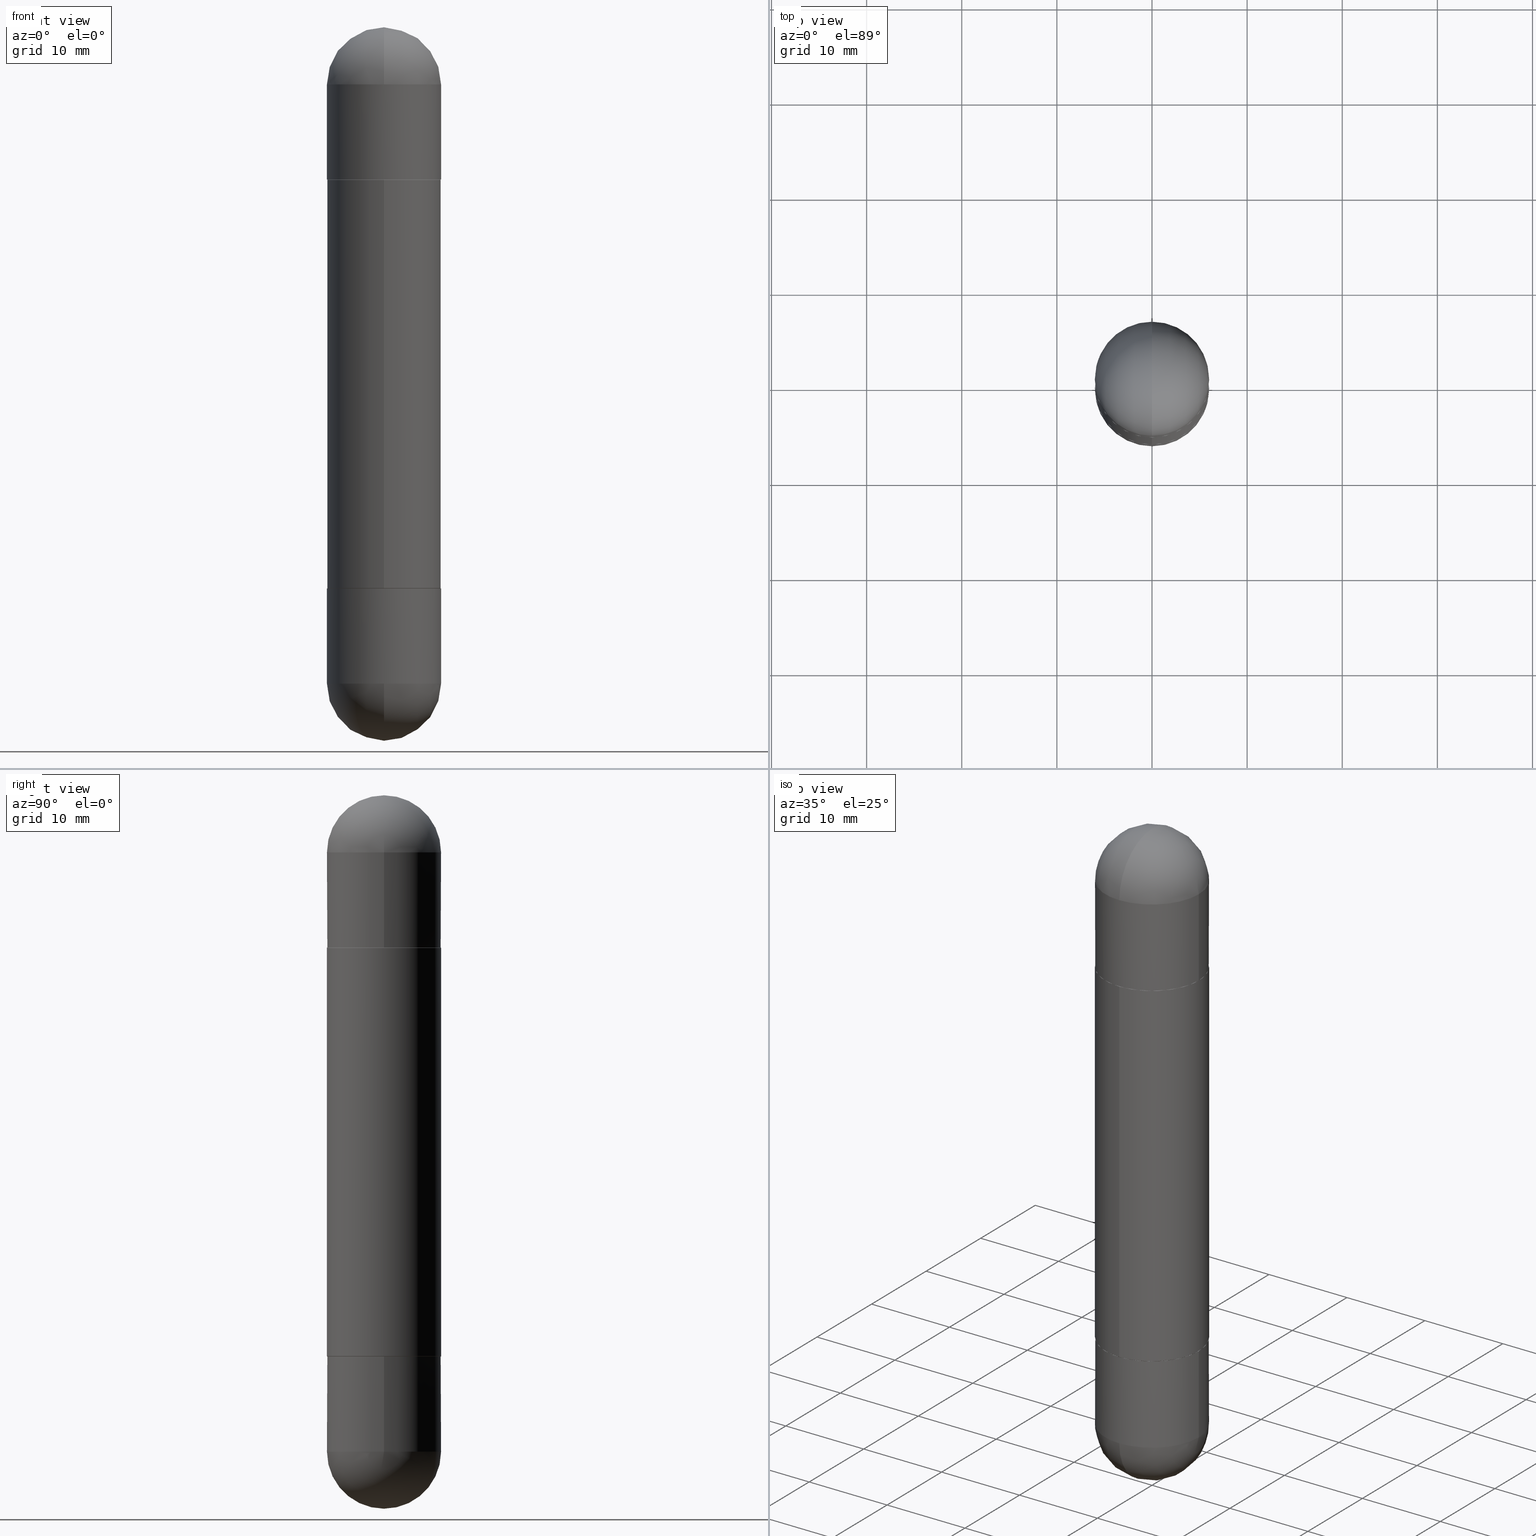
[diagram: canonical four-view strip — front | top / right | iso, engineering-drawing reading convention]
A machine part, canonical four-view strip (front | top / right | iso — engineering-drawing reading convention). The complete STEP part file that produces these views, byte-faithful:
ISO-10303-21;
HEADER;
FILE_DESCRIPTION (( 'STEP AP203' ),
    '1' );
FILE_NAME ('49004.STEP',
    '2024-03-01T12:50:22',
    ( '' ),
    ( '' ),
    'SwSTEP 2.0',
    'SolidWorks 2023',
    '' );
FILE_SCHEMA (( 'CONFIG_CONTROL_DESIGN' ));
ENDSEC;

DATA;
#1 = LINE ( 'NONE', #500, #76 ) ;
#2 = LINE ( 'NONE', #123, #680 ) ;
#3 = EDGE_LOOP ( 'NONE', ( #600, #292, #599, #556 ) ) ;
#4 = DIRECTION ( 'NONE',  ( -6.982962677686265133E-15, -1.000000000000000000, -3.484499991918703113E-15 ) ) ;
#5 = DIRECTION ( 'NONE',  ( -6.982962677686265922E-15, -1.000000000000000000, -3.469747663417773058E-15 ) ) ;
#6 = DIRECTION ( 'NONE',  ( 1.000000000000000000, -6.982962677686265133E-15, 0.000000000000000000 ) ) ;
#7 = AXIS2_PLACEMENT_3D ( 'NONE', #759, #198, #189 ) ;
#8 = AXIS2_PLACEMENT_3D ( 'NONE', #179, #727, #604 ) ;
#9 = CARTESIAN_POINT ( 'NONE',  ( 1.620449627073636656E-15, 0.2362000000000001598, -2.952799999999998537 ) ) ;
#10 = CIRCLE ( 'NONE', #233, 0.2362000000000002709 ) ;
#11 = CC_DESIGN_PERSON_AND_ORGANIZATION_ASSIGNMENT ( #637, #73, ( #102 ) ) ;
#12 =( LENGTH_UNIT ( ) NAMED_UNIT ( * ) SI_UNIT ( $, .METRE. ) );
#13 = DIRECTION ( 'NONE',  ( -2.445468806185136877E-29, 3.491481338843145188E-15, 1.000000000000000000 ) ) ;
#14 = EDGE_CURVE ( 'NONE', #50, #178, #375, .T. ) ;
#15 = DIRECTION ( 'NONE',  ( -2.445468806185136597E-29, 3.491481338843145583E-15, 1.000000000000000000 ) ) ;
#16 = VERTEX_POINT ( 'NONE', #47 ) ;
#17 = VERTEX_POINT ( 'NONE', #536 ) ;
#18 = DIRECTION ( 'NONE',  ( 1.000000000000000000, -6.982962677686265133E-15, 0.000000000000000000 ) ) ;
#19 = SPHERICAL_SURFACE ( 'NONE', #504, 0.2362000000000002709 ) ;
#20 = CIRCLE ( 'NONE', #138, 0.2362000000000002709 ) ;
#21 = EDGE_CURVE ( 'NONE', #17, #225, #312, .T. ) ;
#22 = EDGE_LOOP ( 'NONE', ( #26, #672, #405, #93 ) ) ;
#23 = AXIS2_PLACEMENT_3D ( 'NONE', #433, #686, #324 ) ;
#24 = DIRECTION ( 'NONE',  ( 1.000000000000000000, -6.982962677686265133E-15, 0.000000000000000000 ) ) ;
#25 = SPHERICAL_SURFACE ( 'NONE', #464, 0.2362000000000002709 ) ;
#26 = ORIENTED_EDGE ( 'NONE', *, *, #470, .F. ) ;
#27 = PLANE ( 'NONE',  #505 ) ;
#28 = DIRECTION ( 'NONE',  ( 6.982962677686265922E-15, 1.000000000000000000, 3.469747663417773058E-15 ) ) ;
#29 = VERTEX_POINT ( 'NONE', #605 ) ;
#30 = ORIENTED_EDGE ( 'NONE', *, *, #529, .T. ) ;
#31 = ADVANCED_FACE ( 'NONE', ( #422 ), #237, .T. ) ;
#32 = CALENDAR_DATE ( 2024, 1, 3 ) ;
#33 = CARTESIAN_POINT ( 'NONE',  ( 5.680579489887452821E-29, -8.110362001998742346E-15, -2.322899999999999743 ) ) ;
#34 = VERTEX_POINT ( 'NONE', #613 ) ;
#35 = ORIENTED_EDGE ( 'NONE', *, *, #216, .T. ) ;
#36 = AXIS2_PLACEMENT_3D ( 'NONE', #175, #99, #353 ) ;
#37 = DATE_AND_TIME ( #725, #388 ) ;
#38 = UNCERTAINTY_MEASURE_WITH_UNIT (LENGTH_MEASURE( 1.000000000000000082E-05 ), #147, 'distance_accuracy_value', 'NONE');
#39 = ORIENTED_EDGE ( 'NONE', *, *, #513, .T. ) ;
#40 = DIRECTION ( 'NONE',  ( -2.446269011737253115E-29, 3.490335398947642466E-15, -1.000000000000000000 ) ) ;
#41 = DIRECTION ( 'NONE',  ( -6.982962677686265133E-15, -1.000000000000000000, 3.484499991918703113E-15 ) ) ;
#42 = ORIENTED_EDGE ( 'NONE', *, *, #783, .F. ) ;
#43 = FACE_OUTER_BOUND ( 'NONE', #283, .T. ) ;
#44 = DIRECTION ( 'NONE',  ( 2.445468806185136597E-29, -3.491481338843145583E-15, 1.000000000000000000 ) ) ;
#45 = EDGE_LOOP ( 'NONE', ( #331, #398 ) ) ;
#46 = LINE ( 'NONE', #737, #695 ) ;
#47 = CARTESIAN_POINT ( 'NONE',  ( -0.2361999999999999933, -7.177210476476377283E-15, -0.6299000000000000155 ) ) ;
#48 = EDGE_CURVE ( 'NONE', #658, #712, #627, .T. ) ;
#49 = ORIENTED_EDGE ( 'NONE', *, *, #180, .T. ) ;
#50 = VERTEX_POINT ( 'NONE', #474 ) ;
#51 = ORIENTED_EDGE ( 'NONE', *, *, #756, .T. ) ;
#52 = AXIS2_PLACEMENT_3D ( 'NONE', #540, #352, #430 ) ;
#53 = AXIS2_PLACEMENT_3D ( 'NONE', #85, #15, #403 ) ;
#54 = CARTESIAN_POINT ( 'NONE',  ( -1.649375784469441108E-15, -0.2362000000000083755, -2.321899999999998965 ) ) ;
#55 = DIRECTION ( 'NONE',  ( 2.445468806185136597E-29, -3.491481338843145583E-15, 1.000000000000000000 ) ) ;
#56 = EDGE_CURVE ( 'NONE', #177, #707, #62, .T. ) ;
#57 = CARTESIAN_POINT ( 'NONE',  ( 6.643360558882540179E-29, -9.484958205101285532E-15, -2.716599999999999238 ) ) ;
#58 = CARTESIAN_POINT ( 'NONE',  ( 0.2361999999999999933, -1.649375784469496131E-15, 1.151752954443000088E-29 ) ) ;
#59 = ADVANCED_FACE ( 'NONE', ( #609 ), #515, .T. ) ;
#60 = DIRECTION ( 'NONE',  ( 2.438088387897960049E-29, -3.491481338843145188E-15, 1.000000000000000000 ) ) ;
#61 = DIRECTION ( 'NONE',  ( -6.982962677686265133E-15, -1.000000000000000000, 3.484499991918703113E-15 ) ) ;
#62 = CIRCLE ( 'NONE', #601, 0.2362000000000002709 ) ;
#63 = CARTESIAN_POINT ( 'NONE',  ( 5.680579489887452821E-29, -8.110362001998742346E-15, -0.6299000000000000155 ) ) ;
#64 = CIRCLE ( 'NONE', #197, 0.2361999999999999933 ) ;
#65 = CIRCLE ( 'NONE', #787, 0.2361999999999999933 ) ;
#66 = DIRECTION ( 'NONE',  ( -2.446269011737253396E-29, 3.490335398947642861E-15, -1.000000000000000000 ) ) ;
#67 = VERTEX_POINT ( 'NONE', #484 ) ;
#68 = DIRECTION ( 'NONE',  ( 6.982962677686265922E-15, 1.000000000000000000, 3.469747663417773058E-15 ) ) ;
#69 = DIRECTION ( 'NONE',  ( -6.982962677686265133E-15, -1.000000000000000000, -3.484499991918703113E-15 ) ) ;
#70 = CARTESIAN_POINT ( 'NONE',  ( 0.2361999999999999933, -1.649375784469496131E-15, -2.952799999999999869 ) ) ;
#71 = CARTESIAN_POINT ( 'NONE',  ( 5.682438287364464095E-29, -8.107700098215478665E-15, -0.6299000000000000155 ) ) ;
#72 = CC_DESIGN_DATE_AND_TIME_ASSIGNMENT ( #551, #228, ( #94 ) ) ;
#73 = PERSON_AND_ORGANIZATION_ROLE ( 'design_owner' ) ;
#74 = CIRCLE ( 'NONE', #36, 0.2361999999999999933 ) ;
#75 = DIRECTION ( 'NONE',  ( -2.445468806185136877E-29, 3.491481338843145188E-15, -1.000000000000000000 ) ) ;
#76 = VECTOR ( 'NONE', #488, 39.37007874015748143 ) ;
#77 = COORDINATED_UNIVERSAL_TIME_OFFSET ( 5, 0, .BEHIND. ) ;
#78 = CARTESIAN_POINT ( 'NONE',  ( -1.642392821791752924E-15, -0.2352000000000080970, -0.6299000000000007926 ) ) ;
#79 = VERTEX_POINT ( 'NONE', #242 ) ;
#80 = CARTESIAN_POINT ( 'NONE',  ( -0.2361999999999999933, -7.119358161684659123E-15, -2.716599999999999238 ) ) ;
#81 = EDGE_CURVE ( 'NONE', #178, #50, #149, .T. ) ;
#82 = DIRECTION ( 'NONE',  ( 2.445468806185136597E-29, -3.491481338843145583E-15, 1.000000000000000000 ) ) ;
#83 = VERTEX_POINT ( 'NONE', #677 ) ;
#84 = DIRECTION ( 'NONE',  ( -2.446269011737253396E-29, 3.490335398947642861E-15, -1.000000000000000000 ) ) ;
#85 = CARTESIAN_POINT ( 'NONE',  ( 0.000000000000000000, 0.000000000000000000, 0.000000000000000000 ) ) ;
#86 = EDGE_CURVE ( 'NONE', #603, #586, #231, .T. ) ;
#87 = ORIENTED_EDGE ( 'NONE', *, *, #619, .T. ) ;
#88 = CONICAL_SURFACE ( 'NONE', #101, 0.2351999999999999924, 0.7853981633975507526 ) ;
#89 = AXIS2_PLACEMENT_3D ( 'NONE', #621, #310, #815 ) ;
#90 = CARTESIAN_POINT ( 'NONE',  ( 0.000000000000000000, 0.000000000000000000, -1.476399999999999935 ) ) ;
#91 = EDGE_CURVE ( 'NONE', #265, #781, #337, .T. ) ;
#92 = DIRECTION ( 'NONE',  ( -6.982962677686265922E-15, -1.000000000000000000, 3.469747663417773058E-15 ) ) ;
#93 = ORIENTED_EDGE ( 'NONE', *, *, #481, .F. ) ;
#94 = PRODUCT_DEFINITION ( 'UNKNOWN', '', #103, #424 ) ;
#95 = ORIENTED_EDGE ( 'NONE', *, *, #529, .F. ) ;
#96 = CARTESIAN_POINT ( 'NONE',  ( 6.312240780968655053E-29, -9.959140573241337406E-15, -0.2362000000000000766 ) ) ;
#97 = EDGE_LOOP ( 'NONE', ( #807, #456, #330, #49 ) ) ;
#98 = EDGE_LOOP ( 'NONE', ( #475, #223, #442, #335 ) ) ;
#99 = DIRECTION ( 'NONE',  ( -2.445468806185136597E-29, 3.491481338843145583E-15, 1.000000000000000000 ) ) ;
#100 = DIRECTION ( 'NONE',  ( 1.000000000000000000, -6.982962677686265133E-15, 0.000000000000000000 ) ) ;
#101 = AXIS2_PLACEMENT_3D ( 'NONE', #532, #473, #166 ) ;
#102 = PRODUCT ( '49004', '49004', '', ( #782 ) ) ;
#103 = PRODUCT_DEFINITION_FORMATION_WITH_SPECIFIED_SOURCE ( 'ANY', '', #102, .NOT_KNOWN. ) ;
#104 = DATE_AND_TIME ( #740, #185 ) ;
#105 = DIRECTION ( 'NONE',  ( -6.982962677686265922E-15, -1.000000000000000000, -3.469747663417773058E-15 ) ) ;
#106 = CARTESIAN_POINT ( 'NONE',  ( 5.682438287364464095E-29, -8.107700098215478665E-15, -0.6299000000000000155 ) ) ;
#107 = ORIENTED_EDGE ( 'NONE', *, *, #249, .F. ) ;
#108 = DIRECTION ( 'NONE',  ( -7.105427357601001070E-15, -1.000000000000000000, 0.000000000000000000 ) ) ;
#109 = ADVANCED_FACE ( 'NONE', ( #167 ), #683, .T. ) ;
#110 = ORIENTED_EDGE ( 'NONE', *, *, #651, .F. ) ;
#111 = DIRECTION ( 'NONE',  ( 2.446269011737253396E-29, -3.490335398947642861E-15, 1.000000000000000000 ) ) ;
#112 = EDGE_LOOP ( 'NONE', ( #538, #87, #553, #169 ) ) ;
#113 = CARTESIAN_POINT ( 'NONE',  ( 0.2361999999999999933, -9.759737786468237294E-15, -2.322899999999999743 ) ) ;
#114 = ORIENTED_EDGE ( 'NONE', *, *, #263, .F. ) ;
#115 = DIRECTION ( 'NONE',  ( -2.445468806185136597E-29, 3.491481338843145583E-15, 1.000000000000000000 ) ) ;
#116 = CLOSED_SHELL ( 'NONE', ( #435, #808, #790, #121, #633, #674 ) ) ;
#117 = AXIS2_PLACEMENT_3D ( 'NONE', #298, #161, #362 ) ;
#118 = SECURITY_CLASSIFICATION ( '', '', #234 ) ;
#119 = DIRECTION ( 'NONE',  ( 1.000000000000000000, -6.982962677686266711E-15, 0.000000000000000000 ) ) ;
#120 = DIRECTION ( 'NONE',  ( -2.446269011737253396E-29, 3.490335398947642861E-15, 1.000000000000000000 ) ) ;
#121 = ADVANCED_FACE ( 'NONE', ( #554 ), #181, .F. ) ;
#122 = CARTESIAN_POINT ( 'NONE',  ( 6.312240780968655053E-29, -9.959140573241337406E-15, -0.2362000000000000766 ) ) ;
#123 = CARTESIAN_POINT ( 'NONE',  ( -1.642392821791752924E-15, -0.2352000000000080970, -0.6299000000000007926 ) ) ;
#124 = MANIFOLD_SOLID_BREP ( 'Body-Move/Copy2[1]', #663 ) ;
#125 = CARTESIAN_POINT ( 'NONE',  ( 5.679992018352727461E-29, -8.104209762816530877E-15, -0.6309000000000001274 ) ) ;
#126 = LINE ( 'NONE', #438, #704 ) ;
#127 = CARTESIAN_POINT ( 'NONE',  ( -0.2361999999999999933, 1.620449627073635670E-15, -2.952799999999999869 ) ) ;
#128 = CIRCLE ( 'NONE', #774, 0.2361999999999999933 ) ;
#129 = CARTESIAN_POINT ( 'NONE',  ( 5.682438287364464095E-29, -8.107700098215478665E-15, -2.322899999999999743 ) ) ;
#130 = CARTESIAN_POINT ( 'NONE',  ( 1.620449627073693454E-15, 0.2361999999999949973, -1.476399999999999935 ) ) ;
#131 = FACE_OUTER_BOUND ( 'NONE', #530, .T. ) ;
#132 = EDGE_CURVE ( 'NONE', #670, #723, #717, .T. ) ;
#133 = ORIENTED_EDGE ( 'NONE', *, *, #384, .F. ) ;
#134 = DIRECTION ( 'NONE',  ( 1.000000000000000000, -6.982962677686265133E-15, 0.000000000000000000 ) ) ;
#135 = DIRECTION ( 'NONE',  ( 2.445468806185136597E-29, -3.491481338843145583E-15, 1.000000000000000000 ) ) ;
#136 = DIRECTION ( 'NONE',  ( 2.445468806185136597E-29, -3.491481338843145583E-15, 1.000000000000000000 ) ) ;
#137 = EDGE_CURVE ( 'NONE', #236, #550, #291, .T. ) ;
#138 = AXIS2_PLACEMENT_3D ( 'NONE', #325, #818, #5 ) ;
#139 = AXIS2_PLACEMENT_3D ( 'NONE', #711, #144, #535 ) ;
#140 = DIRECTION ( 'NONE',  ( -2.446269011737253115E-29, 3.490335398947642466E-15, -1.000000000000000000 ) ) ;
#141 = EDGE_LOOP ( 'NONE', ( #778, #407, #334, #793 ) ) ;
#142 = FACE_OUTER_BOUND ( 'NONE', #471, .T. ) ;
#143 = ORIENTED_EDGE ( 'NONE', *, *, #408, .T. ) ;
#144 = DIRECTION ( 'NONE',  ( -0.000000000000000000, -0.000000000000000000, -1.000000000000000000 ) ) ;
#145 = ORIENTED_EDGE ( 'NONE', *, *, #724, .T. ) ;
#146 = ADVANCED_FACE ( 'NONE', ( #795 ), #370, .T. ) ;
#147 =( CONVERSION_BASED_UNIT ( 'INCH', #720 ) LENGTH_UNIT ( ) NAMED_UNIT ( #218 ) );
#148 = CARTESIAN_POINT ( 'NONE',  ( 5.679992018352727461E-29, -8.104209762816530877E-15, -2.321899999999999409 ) ) ;
#149 = CIRCLE ( 'NONE', #194, 0.2351999999999999924 ) ;
#150 = VECTOR ( 'NONE', #140, 39.37007874015748143 ) ;
#151 = EDGE_LOOP ( 'NONE', ( #612, #668, #660, #520 ) ) ;
#152 = CIRCLE ( 'NONE', #313, 0.2362000000000002709 ) ;
#153 = AXIS2_PLACEMENT_3D ( 'NONE', #215, #84, #713 ) ;
#154 = EDGE_LOOP ( 'NONE', ( #458, #287, #798, #193 ) ) ;
#155 = APPROVAL_ROLE ( '' ) ;
#156 = CARTESIAN_POINT ( 'NONE',  ( 6.312240780968655053E-29, -9.959140573241337406E-15, -0.2362000000000000766 ) ) ;
#157 = PRODUCT_RELATED_PRODUCT_CATEGORY ( 'detail', '', ( #102 ) ) ;
#158 = EDGE_LOOP ( 'NONE', ( #566, #160 ) ) ;
#159 = ORIENTED_EDGE ( 'NONE', *, *, #470, .T. ) ;
#160 = ORIENTED_EDGE ( 'NONE', *, *, #132, .F. ) ;
#161 = DIRECTION ( 'NONE',  ( 2.445468806185136597E-29, -3.491481338843145583E-15, 1.000000000000000000 ) ) ;
#162 = CARTESIAN_POINT ( 'NONE',  ( 6.643360558882540179E-29, -9.484958205101285532E-15, -0.2362000000000006039 ) ) ;
#163 = ORIENTED_EDGE ( 'NONE', *, *, #91, .T. ) ;
#164 = PERSON_AND_ORGANIZATION_ROLE ( 'creator' ) ;
#165 = EDGE_LOOP ( 'NONE', ( #606, #514 ) ) ;
#166 = DIRECTION ( 'NONE',  ( -6.982962677686265133E-15, -1.000000000000000000, 3.484499991918703113E-15 ) ) ;
#167 = FACE_OUTER_BOUND ( 'NONE', #154, .T. ) ;
#168 = AXIS2_PLACEMENT_3D ( 'NONE', #205, #646, #715 ) ;
#169 = ORIENTED_EDGE ( 'NONE', *, *, #506, .F. ) ;
#170 = PERSON_AND_ORGANIZATION ( #329, #719 ) ;
#171 = SPHERICAL_SURFACE ( 'NONE', #573, 0.2362000000000002709 ) ;
#172 = DIRECTION ( 'NONE',  ( -2.445468806185136597E-29, 3.491481338843145583E-15, 1.000000000000000000 ) ) ;
#173 = COORDINATED_UNIVERSAL_TIME_OFFSET ( 5, 0, .BEHIND. ) ;
#174 = EDGE_LOOP ( 'NONE', ( #107, #110, #582, #499 ) ) ;
#175 = CARTESIAN_POINT ( 'NONE',  ( 5.680579489887452821E-29, -8.110362001998742346E-15, -2.322899999999999743 ) ) ;
#176 = ORIENTED_EDGE ( 'NONE', *, *, #779, .F. ) ;
#177 = VERTEX_POINT ( 'NONE', #799 ) ;
#178 = VERTEX_POINT ( 'NONE', #738 ) ;
#179 = CARTESIAN_POINT ( 'NONE',  ( 0.000000000000000000, 0.000000000000000000, -2.952799999999999869 ) ) ;
#180 = EDGE_CURVE ( 'NONE', #34, #221, #20, .T. ) ;
#181 = PLANE ( 'NONE',  #52 ) ;
#182 = APPROVAL ( #450, 'UNSPECIFIED' ) ;
#183 = AXIS2_PLACEMENT_3D ( 'NONE', #449, #135, #434 ) ;
#184 = AXIS2_PLACEMENT_3D ( 'NONE', #374, #66, #698 ) ;
#185 = LOCAL_TIME ( 7, 50, 22.00000000000000000, #610 ) ;
#186 = CARTESIAN_POINT ( 'NONE',  ( 1.649375784469552732E-15, 0.2361999999999918609, -0.6298999999999992383 ) ) ;
#187 = DIRECTION ( 'NONE',  ( -6.982962677686265922E-15, -1.000000000000000000, 3.490335398947642466E-15 ) ) ;
#188 = SPHERICAL_SURFACE ( 'NONE', #590, 0.2362000000000002709 ) ;
#189 = DIRECTION ( 'NONE',  ( 6.982962677686265922E-15, 1.000000000000000000, 0.000000000000000000 ) ) ;
#190 = EDGE_CURVE ( 'NONE', #436, #493, #734, .T. ) ;
#191 = DIRECTION ( 'NONE',  ( -2.446269011737253396E-29, 3.490335398947642466E-15, -1.000000000000000000 ) ) ;
#192 = CARTESIAN_POINT ( 'NONE',  ( 6.312240780968655053E-29, -9.959140573241337406E-15, -0.2362000000000000766 ) ) ;
#193 = ORIENTED_EDGE ( 'NONE', *, *, #557, .T. ) ;
#194 = AXIS2_PLACEMENT_3D ( 'NONE', #106, #732, #814 ) ;
#195 = ADVANCED_FACE ( 'NONE', ( #749 ), #755, .F. ) ;
#196 = PLANE ( 'NONE',  #315 ) ;
#197 = AXIS2_PLACEMENT_3D ( 'NONE', #421, #671, #661 ) ;
#198 = DIRECTION ( 'NONE',  ( 1.000000000000000000, -6.982962677686265922E-15, 4.883557194083112340E-29 ) ) ;
#199 = LINE ( 'NONE', #317, #300 ) ;
#200 = FACE_OUTER_BOUND ( 'NONE', #363, .T. ) ;
#201 = FACE_OUTER_BOUND ( 'NONE', #151, .T. ) ;
#202 = EDGE_CURVE ( 'NONE', #652, #739, #758, .T. ) ;
#203 = PERSON_AND_ORGANIZATION_ROLE ( 'creator' ) ;
#204 = CIRCLE ( 'NONE', #247, 0.2351999999999999924 ) ;
#205 = CARTESIAN_POINT ( 'NONE',  ( 0.000000000000000000, 0.000000000000000000, -2.952799999999999869 ) ) ;
#206 = AXIS2_PLACEMENT_3D ( 'NONE', #186, #60, #563 ) ;
#207 = ORIENTED_EDGE ( 'NONE', *, *, #137, .T. ) ;
#208 = ORIENTED_EDGE ( 'NONE', *, *, #753, .F. ) ;
#209 = DIRECTION ( 'NONE',  ( 6.860497997771530774E-15, 1.000000000000000000, 0.000000000000000000 ) ) ;
#210 = FACE_OUTER_BOUND ( 'NONE', #296, .T. ) ;
#211 = ORIENTED_EDGE ( 'NONE', *, *, #56, .F. ) ;
#212 = CARTESIAN_POINT ( 'NONE',  ( 6.643360558882540179E-29, -9.484958205101285532E-15, -0.2362000000000006039 ) ) ;
#213 = ADVANCED_FACE ( 'NONE', ( #131 ), #653, .T. ) ;
#214 = ORIENTED_EDGE ( 'NONE', *, *, #813, .F. ) ;
#215 = CARTESIAN_POINT ( 'NONE',  ( 5.682438287364464095E-29, -8.107700098215478665E-15, -0.6299000000000000155 ) ) ;
#216 = EDGE_CURVE ( 'NONE', #586, #592, #463, .T. ) ;
#217 = DIRECTION ( 'NONE',  ( 2.438088387897960049E-29, -3.491481338843145188E-15, -1.000000000000000000 ) ) ;
#218 = DIMENSIONAL_EXPONENTS ( 1.000000000000000000, 0.000000000000000000, 0.000000000000000000, 0.000000000000000000, 0.000000000000000000, 0.000000000000000000, 0.000000000000000000 ) ;
#219 = ORIENTED_EDGE ( 'NONE', *, *, #306, .T. ) ;
#220 = CIRCLE ( 'NONE', #617, 0.2361999999999999933 ) ;
#221 = VERTEX_POINT ( 'NONE', #319 ) ;
#222 = CYLINDRICAL_SURFACE ( 'NONE', #804, 0.2362000000000001598 ) ;
#223 = ORIENTED_EDGE ( 'NONE', *, *, #569, .T. ) ;
#224 = ADVANCED_FACE ( 'NONE', ( #251 ), #257, .T. ) ;
#225 = VERTEX_POINT ( 'NONE', #752 ) ;
#226 = DIRECTION ( 'NONE',  ( -6.982962677686265133E-15, -1.000000000000000000, -3.484499991918703113E-15 ) ) ;
#227 = CARTESIAN_POINT ( 'NONE',  ( 0.000000000000000000, 0.000000000000000000, 0.000000000000000000 ) ) ;
#228 = DATE_TIME_ROLE ( 'creation_date' ) ;
#229 = CARTESIAN_POINT ( 'NONE',  ( -0.2361999999999999933, -7.119358161684655967E-15, -2.322899999999999743 ) ) ;
#230 = CARTESIAN_POINT ( 'NONE',  ( 6.643360558882540179E-29, -9.484958205101285532E-15, -0.2362000000000006039 ) ) ;
#231 = CIRCLE ( 'NONE', #614, 0.2361999999999999933 ) ;
#232 = CIRCLE ( 'NONE', #376, 0.2362000000000002709 ) ;
#233 = AXIS2_PLACEMENT_3D ( 'NONE', #125, #567, #751 ) ;
#234 = SECURITY_CLASSIFICATION_LEVEL ( 'unclassified' ) ;
#235 = CARTESIAN_POINT ( 'NONE',  ( -0.2361999999999999933, -7.177210476476378861E-15, -0.2362000000000006039 ) ) ;
#236 = VERTEX_POINT ( 'NONE', #628 ) ;
#237 = CYLINDRICAL_SURFACE ( 'NONE', #502, 0.2361999999999999933 ) ;
#238 = VERTEX_POINT ( 'NONE', #321 ) ;
#239 = PERSON_AND_ORGANIZATION ( #329, #719 ) ;
#240 = CARTESIAN_POINT ( 'NONE',  ( 6.312240780968655053E-29, -9.959140573241337406E-15, -2.716599999999999682 ) ) ;
#241 = VERTEX_POINT ( 'NONE', #577 ) ;
#242 = CARTESIAN_POINT ( 'NONE',  ( -0.2361999999999999933, -7.177210476476378861E-15, -0.2362000000000006039 ) ) ;
#243 = FACE_OUTER_BOUND ( 'NONE', #274, .T. ) ;
#244 = EDGE_CURVE ( 'NONE', #636, #265, #546, .T. ) ;
#245 = CARTESIAN_POINT ( 'NONE',  ( 5.682438287364464095E-29, -8.107700098215478665E-15, -0.6299000000000000155 ) ) ;
#246 = AXIS2_PLACEMENT_3D ( 'NONE', #304, #743, #416 ) ;
#247 = AXIS2_PLACEMENT_3D ( 'NONE', #372, #497, #61 ) ;
#248 = CONICAL_SURFACE ( 'NONE', #153, 0.2351999999999999924, 0.7853981633975507526 ) ;
#249 = EDGE_CURVE ( 'NONE', #177, #712, #571, .T. ) ;
#250 = LINE ( 'NONE', #699, #666 ) ;
#251 = FACE_OUTER_BOUND ( 'NONE', #469, .T. ) ;
#252 = DIRECTION ( 'NONE',  ( -2.446269011737253396E-29, 3.490335398947642861E-15, -1.000000000000000000 ) ) ;
#253 = CARTESIAN_POINT ( 'NONE',  ( -0.2361999999999999933, 1.620449627073635670E-15, -2.952799999999999869 ) ) ;
#254 = EDGE_CURVE ( 'NONE', #781, #533, #126, .T. ) ;
#255 = ORIENTED_EDGE ( 'NONE', *, *, #588, .F. ) ;
#256 = SPHERICAL_SURFACE ( 'NONE', #302, 0.2362000000000002709 ) ;
#257 = CYLINDRICAL_SURFACE ( 'NONE', #285, 0.2361999999999999933 ) ;
#258 = AXIS2_PLACEMENT_3D ( 'NONE', #700, #766, #490 ) ;
#259 = PLANE ( 'NONE',  #23 ) ;
#260 = APPROVAL_PERSON_ORGANIZATION ( #239, #596, #414 ) ;
#261 = DIRECTION ( 'NONE',  ( -2.446269011737253396E-29, 3.490335398947642466E-15, 1.000000000000000000 ) ) ;
#262 = ADVANCED_FACE ( 'NONE', ( #508 ), #383, .T. ) ;
#263 = EDGE_CURVE ( 'NONE', #238, #586, #385, .T. ) ;
#264 = CARTESIAN_POINT ( 'NONE',  ( 6.643360558882540179E-29, -9.484958205101285532E-15, -2.716599999999999238 ) ) ;
#265 = VERTEX_POINT ( 'NONE', #447 ) ;
#266 = CARTESIAN_POINT ( 'NONE',  ( -1.678301941865292496E-15, -0.2362000000000098743, -2.716599999999997905 ) ) ;
#267 = DIRECTION ( 'NONE',  ( 1.000000000000000000, -6.982962677686265133E-15, 0.000000000000000000 ) ) ;
#268 = EDGE_LOOP ( 'NONE', ( #163, #644, #255, #597, #143 ) ) ;
#269 = CARTESIAN_POINT ( 'NONE',  ( 0.2361999999999999933, -1.649375784469496131E-15, -2.952799999999999869 ) ) ;
#270 = AXIS2_PLACEMENT_3D ( 'NONE', #227, #172, #669 ) ;
#271 = EDGE_CURVE ( 'NONE', #723, #652, #199, .T. ) ;
#272 = CARTESIAN_POINT ( 'NONE',  ( 1.671196514507812184E-15, 0.2351999999999918878, -2.322900000000000631 ) ) ;
#273 = AXIS2_PLACEMENT_3D ( 'NONE', #460, #279, #524 ) ;
#274 = EDGE_LOOP ( 'NONE', ( #565, #411 ) ) ;
#275 =( NAMED_UNIT ( * ) SI_UNIT ( $, .STERADIAN. ) SOLID_ANGLE_UNIT ( ) );
#276 = DIRECTION ( 'NONE',  ( -1.000000000000000000, 6.982962677686265922E-15, -4.883557194083112901E-29 ) ) ;
#277 = ORIENTED_EDGE ( 'NONE', *, *, #750, .T. ) ;
#278 = EDGE_CURVE ( 'NONE', #178, #707, #2, .T. ) ;
#279 = DIRECTION ( 'NONE',  ( 0.000000000000000000, 0.000000000000000000, 1.000000000000000000 ) ) ;
#280 = CARTESIAN_POINT ( 'NONE',  ( 1.649375784469552732E-15, 0.2361999999999918609, -2.322900000000000631 ) ) ;
#281 = ORIENTED_EDGE ( 'NONE', *, *, #513, .F. ) ;
#282 = PERSON_AND_ORGANIZATION ( #329, #719 ) ;
#283 = EDGE_LOOP ( 'NONE', ( #391, #785, #800, #716, #516 ) ) ;
#284 = CARTESIAN_POINT ( 'NONE',  ( 1.674749228186613674E-15, 0.2351999999999918878, -2.322900000000000631 ) ) ;
#285 = AXIS2_PLACEMENT_3D ( 'NONE', #501, #311, #495 ) ;
#286 = AXIS2_PLACEMENT_3D ( 'NONE', #264, #455, #267 ) ;
#287 = ORIENTED_EDGE ( 'NONE', *, *, #491, .T. ) ;
#288 = ORIENTED_EDGE ( 'NONE', *, *, #588, .T. ) ;
#289 = FACE_OUTER_BOUND ( 'NONE', #788, .T. ) ;
#290 = APPROVAL ( #537, 'UNSPECIFIED' ) ;
#291 = LINE ( 'NONE', #58, #364 ) ;
#292 = ORIENTED_EDGE ( 'NONE', *, *, #340, .T. ) ;
#293 = CARTESIAN_POINT ( 'NONE',  ( -1.649375784469450574E-15, -0.2362000000000053224, -1.476399999999999935 ) ) ;
#294 = ORIENTED_EDGE ( 'NONE', *, *, #48, .T. ) ;
#295 = CARTESIAN_POINT ( 'NONE',  ( 6.312240780968655053E-29, -9.959140573241337406E-15, -0.2362000000000000766 ) ) ;
#296 = EDGE_LOOP ( 'NONE', ( #772, #647, #730, #344 ) ) ;
#297 = PERSON_AND_ORGANIZATION_ROLE ( 'classification_officer' ) ;
#298 = CARTESIAN_POINT ( 'NONE',  ( 6.643360558882540179E-29, -9.484958205101285532E-15, -0.2362000000000006039 ) ) ;
#299 = DIRECTION ( 'NONE',  ( -6.982962677686265133E-15, -1.000000000000000000, -3.484499991918703113E-15 ) ) ;
#300 = VECTOR ( 'NONE', #690, 39.37007874015748143 ) ;
#301 = ORIENTED_EDGE ( 'NONE', *, *, #691, .F. ) ;
#302 = AXIS2_PLACEMENT_3D ( 'NONE', #634, #378, #623 ) ;
#303 = CARTESIAN_POINT ( 'NONE',  ( 5.680579489887452821E-29, -8.110362001998742346E-15, -0.6299000000000000155 ) ) ;
#304 = CARTESIAN_POINT ( 'NONE',  ( 5.682438287364464095E-29, -8.107700098215478665E-15, -2.322899999999999743 ) ) ;
#305 = ORIENTED_EDGE ( 'NONE', *, *, #271, .F. ) ;
#306 = EDGE_CURVE ( 'NONE', #592, #29, #639, .T. ) ;
#307 = DIRECTION ( 'NONE',  ( -2.446269011737253396E-29, 3.490335398947642861E-15, -1.000000000000000000 ) ) ;
#308 = DIRECTION ( 'NONE',  ( -0.000000000000000000, -0.000000000000000000, -1.000000000000000000 ) ) ;
#309 = EDGE_CURVE ( 'NONE', #723, #670, #204, .T. ) ;
#310 = DIRECTION ( 'NONE',  ( 2.445468806185136597E-29, -3.491481338843145583E-15, 1.000000000000000000 ) ) ;
#311 = DIRECTION ( 'NONE',  ( -2.445468806185136597E-29, 3.491481338843145583E-15, -1.000000000000000000 ) ) ;
#312 = CIRCLE ( 'NONE', #771, 0.2361999999999999933 ) ;
#313 = AXIS2_PLACEMENT_3D ( 'NONE', #148, #721, #92 ) ;
#314 = EDGE_LOOP ( 'NONE', ( #42, #659, #35, #39 ) ) ;
#315 = AXIS2_PLACEMENT_3D ( 'NONE', #754, #191, #446 ) ;
#316 = DIRECTION ( 'NONE',  ( 1.000000000000000000, -6.982962677686265922E-15, -4.883557194083112901E-29 ) ) ;
#317 = CARTESIAN_POINT ( 'NONE',  ( -1.642392821791752924E-15, -0.2352000000000080970, -2.322899999999998855 ) ) ;
#318 = CARTESIAN_POINT ( 'NONE',  ( -1.649375784469441108E-15, -0.2362000000000083755, -0.6309000000000009045 ) ) ;
#319 = CARTESIAN_POINT ( 'NONE',  ( 1.620449627073694243E-15, 0.2361999999999921662, -0.6308999999999992392 ) ) ;
#320 = DIRECTION ( 'NONE',  ( -2.445468806185136597E-29, 3.491481338843145583E-15, 1.000000000000000000 ) ) ;
#321 = CARTESIAN_POINT ( 'NONE',  ( 6.899960026864792464E-29, -1.076936538677815810E-14, 2.048885995248197414E-16 ) ) ;
#322 = AXIS2_PLACEMENT_3D ( 'NONE', #245, #111, #299 ) ;
#323 = ORIENTED_EDGE ( 'NONE', *, *, #249, .T. ) ;
#324 = DIRECTION ( 'NONE',  ( -1.000000000000000000, 6.982962677686265922E-15, 4.876176775795935793E-29 ) ) ;
#325 = CARTESIAN_POINT ( 'NONE',  ( 5.679992018352727461E-29, -8.104209762816530877E-15, -0.6309000000000001274 ) ) ;
#326 = CALENDAR_DATE ( 2024, 1, 3 ) ;
#327 = DIRECTION ( 'NONE',  ( 2.445468806185136597E-29, -3.491481338843145583E-15, 1.000000000000000000 ) ) ;
#328 = ORIENTED_EDGE ( 'NONE', *, *, #309, .T. ) ;
#329 = PERSON ( 'UNSPECIFIED', 'UNSPECIFIED', 'UNSPECIFIED', ('UNSPECIFIED'), ('UNSPECIFIED'), ('UNSPECIFIED') ) ;
#330 = ORIENTED_EDGE ( 'NONE', *, *, #555, .T. ) ;
#331 = ORIENTED_EDGE ( 'NONE', *, *, #81, .T. ) ;
#332 = DIRECTION ( 'NONE',  ( 2.445468806185136597E-29, -3.491481338843145583E-15, 1.000000000000000000 ) ) ;
#333 = CARTESIAN_POINT ( 'NONE',  ( 1.649375784469561606E-15, 0.2361999999999903899, -0.2361999999999997990 ) ) ;
#334 = ORIENTED_EDGE ( 'NONE', *, *, #278, .T. ) ;
#335 = ORIENTED_EDGE ( 'NONE', *, *, #91, .F. ) ;
#336 =( NAMED_UNIT ( * ) PLANE_ANGLE_UNIT ( ) SI_UNIT ( $, .RADIAN. ) );
#337 = CIRCLE ( 'NONE', #693, 0.2361999999999999933 ) ;
#338 = CONICAL_SURFACE ( 'NONE', #816, 0.2351999999999999924, 0.7853981633975507526 ) ;
#339 = CC_DESIGN_APPROVAL ( #290, ( #118 ) ) ;
#340 = EDGE_CURVE ( 'NONE', #67, #17, #232, .T. ) ;
#341 = EDGE_LOOP ( 'NONE', ( #294, #542 ) ) ;
#342 = LINE ( 'NONE', #784, #366 ) ;
#343 = ORIENTED_EDGE ( 'NONE', *, *, #278, .F. ) ;
#344 = ORIENTED_EDGE ( 'NONE', *, *, #202, .T. ) ;
#345 = DIRECTION ( 'NONE',  ( -2.446269011737253396E-29, 3.490335398947642861E-15, -1.000000000000000000 ) ) ;
#346 = ORIENTED_EDGE ( 'NONE', *, *, #521, .T. ) ;
#347 = CC_DESIGN_PERSON_AND_ORGANIZATION_ASSIGNMENT ( #282, #356, ( #103 ) ) ;
#348 = DATE_AND_TIME ( #796, #562 ) ;
#349 = EDGE_LOOP ( 'NONE', ( #328, #159, #459, #305 ) ) ;
#350 = CARTESIAN_POINT ( 'NONE',  ( -1.620449627073571772E-15, -0.2362000000000098743, -0.2362000000000014366 ) ) ;
#351 = AXIS2_PLACEMENT_3D ( 'NONE', #805, #794, #119 ) ;
#352 = DIRECTION ( 'NONE',  ( -2.446269011737253396E-29, 3.490335398947642466E-15, -1.000000000000000000 ) ) ;
#353 = DIRECTION ( 'NONE',  ( 1.000000000000000000, -6.982962677686265133E-15, 0.000000000000000000 ) ) ;
#354 = CARTESIAN_POINT ( 'NONE',  ( 5.679992018352727461E-29, -8.104209762816530877E-15, -0.6309000000000001274 ) ) ;
#355 = ORIENTED_EDGE ( 'NONE', *, *, #555, .F. ) ;
#356 = PERSON_AND_ORGANIZATION_ROLE ( 'design_supplier' ) ;
#357 = PRODUCT_DEFINITION_SHAPE ( 'NONE', 'NONE',  #94 ) ;
#358 = DIRECTION ( 'NONE',  ( -2.445468806185136597E-29, 3.491481338843145583E-15, 1.000000000000000000 ) ) ;
#359 = ADVANCED_FACE ( 'NONE', ( #142 ), #585, .T. ) ;
#360 = CARTESIAN_POINT ( 'NONE',  ( 5.682438287364464095E-29, -8.107700098215478665E-15, -2.322899999999999743 ) ) ;
#361 = EDGE_CURVE ( 'NONE', #50, #177, #342, .T. ) ;
#362 = DIRECTION ( 'NONE',  ( 1.000000000000000000, -6.982962677686265133E-15, 0.000000000000000000 ) ) ;
#363 = EDGE_LOOP ( 'NONE', ( #620, #394, #718, #343 ) ) ;
#364 = VECTOR ( 'NONE', #419, 39.37007874015748143 ) ;
#365 = CARTESIAN_POINT ( 'NONE',  ( 0.000000000000000000, 0.000000000000000000, -2.952799999999999869 ) ) ;
#366 = VECTOR ( 'NONE', #594, 39.37007874015748143 ) ;
#367 = CC_DESIGN_PERSON_AND_ORGANIZATION_ASSIGNMENT ( #769, #203, ( #94 ) ) ;
#368 = CIRCLE ( 'NONE', #404, 0.2362000000000002709 ) ;
#369 = CARTESIAN_POINT ( 'NONE',  ( 6.312240780968655053E-29, -9.959140573241337406E-15, -2.716599999999999682 ) ) ;
#370 = CYLINDRICAL_SURFACE ( 'NONE', #270, 0.2361999999999999933 ) ;
#371 = LINE ( 'NONE', #127, #480 ) ;
#372 = CARTESIAN_POINT ( 'NONE',  ( 5.682438287364464095E-29, -8.107700098215478665E-15, -2.322899999999999743 ) ) ;
#373 = DIRECTION ( 'NONE',  ( -2.445468806185136877E-29, 3.491481338843145188E-15, -1.000000000000000000 ) ) ;
#374 = CARTESIAN_POINT ( 'NONE',  ( 0.000000000000000000, 0.000000000000000000, -2.952799999999999869 ) ) ;
#375 = CIRCLE ( 'NONE', #322, 0.2351999999999999924 ) ;
#376 = AXIS2_PLACEMENT_3D ( 'NONE', #192, #624, #560 ) ;
#377 = LOCAL_TIME ( 7, 50, 22.00000000000000000, #77 ) ;
#378 = DIRECTION ( 'NONE',  ( 1.000000000000000000, -6.982962677686265922E-15, -4.883557194083112901E-29 ) ) ;
#379 = CARTESIAN_POINT ( 'NONE',  ( 5.682438287364464095E-29, -8.107700098215478665E-15, -0.6299000000000000155 ) ) ;
#380 = DIRECTION ( 'NONE',  ( 2.445468806185136597E-29, -3.491481338843145583E-15, 1.000000000000000000 ) ) ;
#381 = CARTESIAN_POINT ( 'NONE',  ( 5.679992018352727461E-29, -8.104209762816530877E-15, -2.321899999999999409 ) ) ;
#382 = ADVANCED_FACE ( 'NONE', ( #210 ), #768, .T. ) ;
#383 = CYLINDRICAL_SURFACE ( 'NONE', #184, 0.2362000000000001598 ) ;
#384 = EDGE_CURVE ( 'NONE', #493, #436, #478, .T. ) ;
#385 = CIRCLE ( 'NONE', #258, 0.2362000000000002709 ) ;
#386 = CIRCLE ( 'NONE', #503, 0.2362000000000002709 ) ;
#387 = DIRECTION ( 'NONE',  ( 0.000000000000000000, 0.000000000000000000, 1.000000000000000000 ) ) ;
#388 = LOCAL_TIME ( 7, 50, 22.00000000000000000, #602 ) ;
#389 = CARTESIAN_POINT ( 'NONE',  ( 6.643360558882540179E-29, -9.484958205101285532E-15, -0.2362000000000006039 ) ) ;
#390 = EDGE_LOOP ( 'NONE', ( #211, #323, #665, #462 ) ) ;
#391 = ORIENTED_EDGE ( 'NONE', *, *, #306, .F. ) ;
#392 = CARTESIAN_POINT ( 'NONE',  ( 5.680579489887452821E-29, -8.110362001998742346E-15, -0.6299000000000000155 ) ) ;
#393 = DIRECTION ( 'NONE',  ( 5.024295867788576727E-15, 0.7071067811866224018, 0.7071067811864726327 ) ) ;
#394 = ORIENTED_EDGE ( 'NONE', *, *, #361, .T. ) ;
#395 = CARTESIAN_POINT ( 'NONE',  ( 6.643360558882540179E-29, -9.484958205101285532E-15, -0.2362000000000006039 ) ) ;
#396 = ADVANCED_FACE ( 'NONE', ( #397 ), #19, .T. ) ;
#397 = FACE_OUTER_BOUND ( 'NONE', #3, .T. ) ;
#398 = ORIENTED_EDGE ( 'NONE', *, *, #14, .T. ) ;
#399 = CLOSED_SHELL ( 'NONE', ( #31, #685, #684, #714, #541 ) ) ;
#400 = APPLICATION_CONTEXT ( 'configuration controlled 3d designs of mechanical parts and assemblies' ) ;
#401 = AXIS2_PLACEMENT_3D ( 'NONE', #71, #694, #69 ) ;
#402 = CIRCLE ( 'NONE', #735, 0.2362000000000002709 ) ;
#403 = DIRECTION ( 'NONE',  ( 1.000000000000000000, -6.982962677686266711E-15, 4.876176775795936353E-29 ) ) ;
#404 = AXIS2_PLACEMENT_3D ( 'NONE', #576, #708, #209 ) ;
#405 = ORIENTED_EDGE ( 'NONE', *, *, #271, .T. ) ;
#406 = MANIFOLD_SOLID_BREP ( 'Mirror4[1]', #116 ) ;
#407 = ORIENTED_EDGE ( 'NONE', *, *, #81, .F. ) ;
#408 = EDGE_CURVE ( 'NONE', #236, #265, #664, .T. ) ;
#409 = APPROVAL_DATE_TIME ( #37, #290 ) ;
#410 = DIRECTION ( 'NONE',  ( -1.000000000000000000, 6.982962677686265922E-15, 4.883557194083112340E-29 ) ) ;
#411 = ORIENTED_EDGE ( 'NONE', *, *, #750, .F. ) ;
#412 = MANIFOLD_SOLID_BREP ( 'Mirror4[4]', #399 ) ;
#413 = ADVANCED_FACE ( 'NONE', ( #466 ), #519, .F. ) ;
#414 = APPROVAL_ROLE ( '' ) ;
#415 = DIRECTION ( 'NONE',  ( -1.000000000000000000, 6.982962677686265922E-15, -4.883557194083112901E-29 ) ) ;
#416 = DIRECTION ( 'NONE',  ( -6.982962677686265133E-15, -1.000000000000000000, 3.484499991918703113E-15 ) ) ;
#417 = CARTESIAN_POINT ( 'NONE',  ( 5.679992018352727461E-29, -8.104209762816530877E-15, -0.6309000000000001274 ) ) ;
#418 = AXIS2_PLACEMENT_3D ( 'NONE', #655, #345, #510 ) ;
#419 = DIRECTION ( 'NONE',  ( -2.445468806185136877E-29, 3.491481338843145188E-15, 1.000000000000000000 ) ) ;
#420 = AXIS2_PLACEMENT_3D ( 'NONE', #697, #252, #4 ) ;
#421 = CARTESIAN_POINT ( 'NONE',  ( 5.680579489887452821E-29, -8.110362001998742346E-15, -0.6299000000000000155 ) ) ;
#422 = FACE_OUTER_BOUND ( 'NONE', #726, .T. ) ;
#423 = SHAPE_DEFINITION_REPRESENTATION ( #357, #544 ) ;
#424 = DESIGN_CONTEXT ( 'detailed design', #400, 'design' ) ;
#425 = DIRECTION ( 'NONE',  ( -2.446269011737253396E-29, 3.490335398947642861E-15, -1.000000000000000000 ) ) ;
#426 = EDGE_CURVE ( 'NONE', #225, #468, #748, .T. ) ;
#427 = DIRECTION ( 'NONE',  ( 1.000000000000000000, -6.982962677686265133E-15, 0.000000000000000000 ) ) ;
#428 = DIRECTION ( 'NONE',  ( 1.000000000000000000, -6.982962677686265133E-15, 0.000000000000000000 ) ) ;
#429 = AXIS2_PLACEMENT_3D ( 'NONE', #728, #308, #487 ) ;
#430 = DIRECTION ( 'NONE',  ( -6.982962677686265922E-15, -1.000000000000000000, -3.490335398947642466E-15 ) ) ;
#431 = AXIS2_PLACEMENT_3D ( 'NONE', #598, #457, #650 ) ;
#432 = CIRCLE ( 'NONE', #517, 0.2361999999999999933 ) ;
#433 = CARTESIAN_POINT ( 'NONE',  ( 1.649375784469552732E-15, 0.2361999999999918609, -0.6298999999999992383 ) ) ;
#434 = DIRECTION ( 'NONE',  ( 1.000000000000000000, -6.982962677686265133E-15, 0.000000000000000000 ) ) ;
#435 = ADVANCED_FACE ( 'NONE', ( #461 ), #512, .T. ) ;
#436 = VERTEX_POINT ( 'NONE', #78 ) ;
#437 = CARTESIAN_POINT ( 'NONE',  ( 1.620449627073673141E-15, 0.2361999999999922217, -2.321900000000000297 ) ) ;
#438 = CARTESIAN_POINT ( 'NONE',  ( -0.2361999999999999933, 1.678301941865356591E-15, -1.161852468318208757E-29 ) ) ;
#439 = ADVANCED_FACE ( 'NONE', ( #201 ), #25, .T. ) ;
#440 = FACE_OUTER_BOUND ( 'NONE', #97, .T. ) ;
#441 = DIRECTION ( 'NONE',  ( 2.446269011737253396E-29, -3.490335398947642861E-15, 1.000000000000000000 ) ) ;
#442 = ORIENTED_EDGE ( 'NONE', *, *, #761, .F. ) ;
#443 = AXIS2_PLACEMENT_3D ( 'NONE', #381, #632, #635 ) ;
#444 = CIRCLE ( 'NONE', #803, 0.2361999999999999933 ) ;
#445 = CONICAL_SURFACE ( 'NONE', #420, 0.2351999999999999924, 0.7853981633975507526 ) ;
#446 = DIRECTION ( 'NONE',  ( -6.982962677686265922E-15, -1.000000000000000000, -3.490335398947642466E-15 ) ) ;
#447 = CARTESIAN_POINT ( 'NONE',  ( 1.649375784469561606E-15, 0.2361999999999903899, -2.716600000000000126 ) ) ;
#448 = DIRECTION ( 'NONE',  ( -2.445468806185136877E-29, 3.491481338843145188E-15, -1.000000000000000000 ) ) ;
#449 = CARTESIAN_POINT ( 'NONE',  ( 6.643360558882540179E-29, -9.484958205101285532E-15, -0.2362000000000006039 ) ) ;
#450 = APPROVAL_STATUS ( 'not_yet_approved' ) ;
#451 = DIRECTION ( 'NONE',  ( -6.982962677686265922E-15, -1.000000000000000000, 0.000000000000000000 ) ) ;
#452 = AXIS2_PLACEMENT_3D ( 'NONE', #379, #441, #568 ) ;
#453 = COORDINATED_UNIVERSAL_TIME_OFFSET ( 5, 0, .BEHIND. ) ;
#454 = CIRCLE ( 'NONE', #630, 0.2361999999999999933 ) ;
#455 = DIRECTION ( 'NONE',  ( -2.445468806185136597E-29, 3.491481338843145583E-15, 1.000000000000000000 ) ) ;
#456 = ORIENTED_EDGE ( 'NONE', *, *, #190, .F. ) ;
#457 = DIRECTION ( 'NONE',  ( 2.446269011737253396E-29, -3.490335398947642861E-15, 1.000000000000000000 ) ) ;
#458 = ORIENTED_EDGE ( 'NONE', *, *, #340, .F. ) ;
#459 = ORIENTED_EDGE ( 'NONE', *, *, #202, .F. ) ;
#460 = CARTESIAN_POINT ( 'NONE',  ( 0.000000000000000000, 0.000000000000000000, 0.000000000000000000 ) ) ;
#461 = FACE_OUTER_BOUND ( 'NONE', #390, .T. ) ;
#462 = ORIENTED_EDGE ( 'NONE', *, *, #729, .F. ) ;
#463 = CIRCLE ( 'NONE', #183, 0.2361999999999999933 ) ;
#464 = AXIS2_PLACEMENT_3D ( 'NONE', #770, #276, #642 ) ;
#465 = CC_DESIGN_APPROVAL ( #596, ( #103 ) ) ;
#466 = FACE_OUTER_BOUND ( 'NONE', #710, .T. ) ;
#467 = CC_DESIGN_PERSON_AND_ORGANIZATION_ASSIGNMENT ( #482, #164, ( #103 ) ) ;
#468 = VERTEX_POINT ( 'NONE', #333 ) ;
#469 = EDGE_LOOP ( 'NONE', ( #733, #643, #277, #214, #706 ) ) ;
#470 = EDGE_CURVE ( 'NONE', #670, #739, #525, .T. ) ;
#471 = EDGE_LOOP ( 'NONE', ( #575, #583, #51, #207, #95 ) ) ;
#472 = EDGE_LOOP ( 'NONE', ( #176, #523 ) ) ;
#473 = DIRECTION ( 'NONE',  ( -2.446269011737253396E-29, 3.490335398947642861E-15, 1.000000000000000000 ) ) ;
#474 = CARTESIAN_POINT ( 'NONE',  ( 1.617019378074807352E-15, 0.2351999999999918878, -0.6298999999999992383 ) ) ;
#475 = ORIENTED_EDGE ( 'NONE', *, *, #244, .F. ) ;
#476 = CARTESIAN_POINT ( 'NONE',  ( 5.682438287364464095E-29, -8.107700098215478665E-15, -0.6299000000000000155 ) ) ;
#477 = CLOSED_SHELL ( 'NONE', ( #224, #396, #109, #763, #625 ) ) ;
#478 = CIRCLE ( 'NONE', #431, 0.2351999999999999924 ) ;
#479 = DIRECTION ( 'NONE',  ( 1.000000000000000000, -6.982962677686265133E-15, 0.000000000000000000 ) ) ;
#480 = VECTOR ( 'NONE', #448, 39.37007874015748143 ) ;
#481 = EDGE_CURVE ( 'NONE', #739, #652, #152, .T. ) ;
#482 = PERSON_AND_ORGANIZATION ( #329, #719 ) ;
#483 = CYLINDRICAL_SURFACE ( 'NONE', #8, 0.2361999999999999933 ) ;
#484 = CARTESIAN_POINT ( 'NONE',  ( 6.899960026864792464E-29, -1.076936538677815810E-14, 2.048885995248197414E-16 ) ) ;
#485 = PERSON_AND_ORGANIZATION ( #329, #719 ) ;
#486 = LINE ( 'NONE', #744, #587 ) ;
#487 = DIRECTION ( 'NONE',  ( -1.000000000000000000, 0.000000000000000000, 0.000000000000000000 ) ) ;
#488 = DIRECTION ( 'NONE',  ( -2.446269011737253115E-29, 3.490335398947642466E-15, -1.000000000000000000 ) ) ;
#489 = CLOSED_SHELL ( 'NONE', ( #638, #262, #213, #745, #676, #382, #59, #195 ) ) ;
#490 = DIRECTION ( 'NONE',  ( -6.982962677686265922E-15, -1.000000000000000000, 0.000000000000000000 ) ) ;
#491 = EDGE_CURVE ( 'NONE', #67, #468, #386, .T. ) ;
#492 = VECTOR ( 'NONE', #393, 39.37007874015748143 ) ;
#493 = VERTEX_POINT ( 'NONE', #777 ) ;
#494 = PLANE ( 'NONE',  #206 ) ;
#495 = DIRECTION ( 'NONE',  ( 1.000000000000000000, -6.982962677686266711E-15, 0.000000000000000000 ) ) ;
#496 = DIRECTION ( 'NONE',  ( 4.851104656541460468E-15, 0.7071067811866224018, -0.7071067811864726327 ) ) ;
#497 = DIRECTION ( 'NONE',  ( -2.446269011737253396E-29, 3.490335398947642861E-15, 1.000000000000000000 ) ) ;
#498 = ORIENTED_EDGE ( 'NONE', *, *, #701, .T. ) ;
#499 = ORIENTED_EDGE ( 'NONE', *, *, #518, .F. ) ;
#500 = CARTESIAN_POINT ( 'NONE',  ( -1.649375784469497117E-15, -0.2362000000000001598, -2.952800000000000757 ) ) ;
#501 = CARTESIAN_POINT ( 'NONE',  ( 0.000000000000000000, 0.000000000000000000, -2.952799999999999869 ) ) ;
#502 = AXIS2_PLACEMENT_3D ( 'NONE', #365, #806, #618 ) ;
#503 = AXIS2_PLACEMENT_3D ( 'NONE', #156, #410, #451 ) ;
#504 = AXIS2_PLACEMENT_3D ( 'NONE', #96, #780, #28 ) ;
#505 = AXIS2_PLACEMENT_3D ( 'NONE', #90, #387, #645 ) ;
#506 = EDGE_CURVE ( 'NONE', #34, #652, #522, .T. ) ;
#507 = FACE_OUTER_BOUND ( 'NONE', #472, .T. ) ;
#508 = FACE_OUTER_BOUND ( 'NONE', #112, .T. ) ;
#509 = APPLICATION_PROTOCOL_DEFINITION ( 'international standard', 'config_control_design', 1994, #400 ) ;
#510 = DIRECTION ( 'NONE',  ( -6.982962677686265922E-15, -1.000000000000000000, -4.626330217890366181E-15 ) ) ;
#511 = APPROVAL_DATE_TIME ( #579, #182 ) ;
#512 = CYLINDRICAL_SURFACE ( 'NONE', #418, 0.2362000000000001598 ) ;
#513 = EDGE_CURVE ( 'NONE', #592, #595, #705, .T. ) ;
#514 = ORIENTED_EDGE ( 'NONE', *, *, #384, .T. ) ;
#515 = CONICAL_SURFACE ( 'NONE', #246, 0.2351999999999999924, 0.7853981633975507526 ) ;
#516 = ORIENTED_EDGE ( 'NONE', *, *, #779, .T. ) ;
#517 = AXIS2_PLACEMENT_3D ( 'NONE', #392, #332, #18 ) ;
#518 = EDGE_CURVE ( 'NONE', #712, #658, #616, .T. ) ;
#519 = PLANE ( 'NONE',  #640 ) ;
#520 = ORIENTED_EDGE ( 'NONE', *, *, #756, .F. ) ;
#521 = EDGE_CURVE ( 'NONE', #83, #16, #64, .T. ) ;
#522 = LINE ( 'NONE', #591, #150 ) ;
#523 = ORIENTED_EDGE ( 'NONE', *, *, #657, .F. ) ;
#524 = DIRECTION ( 'NONE',  ( 1.000000000000000000, 0.000000000000000000, 0.000000000000000000 ) ) ;
#525 = LINE ( 'NONE', #272, #492 ) ;
#526 = ORIENTED_EDGE ( 'NONE', *, *, #813, .T. ) ;
#527 = AXIS2_PLACEMENT_3D ( 'NONE', #129, #261, #187 ) ;
#528 = CIRCLE ( 'NONE', #786, 0.2361999999999999933 ) ;
#529 = EDGE_CURVE ( 'NONE', #533, #550, #74, .T. ) ;
#530 = EDGE_LOOP ( 'NONE', ( #133, #498, #145, #355 ) ) ;
#531 = CC_DESIGN_APPROVAL ( #182, ( #94 ) ) ;
#532 = CARTESIAN_POINT ( 'NONE',  ( 5.682438287364464095E-29, -8.107700098215478665E-15, -2.322899999999999743 ) ) ;
#533 = VERTEX_POINT ( 'NONE', #229 ) ;
#534 = ORIENTED_EDGE ( 'NONE', *, *, #657, .T. ) ;
#535 = DIRECTION ( 'NONE',  ( -1.000000000000000000, 0.000000000000000000, 0.000000000000000000 ) ) ;
#536 = CARTESIAN_POINT ( 'NONE',  ( -1.620449627073571772E-15, -0.2362000000000098743, -0.2362000000000014366 ) ) ;
#537 = APPROVAL_STATUS ( 'not_yet_approved' ) ;
#538 = ORIENTED_EDGE ( 'NONE', *, *, #724, .F. ) ;
#539 = DIRECTION ( 'NONE',  ( -1.000000000000000000, 7.105427357601001070E-15, -4.926315508542082329E-29 ) ) ;
#540 = CARTESIAN_POINT ( 'NONE',  ( 5.682438287364464095E-29, -8.107700098215478665E-15, -0.6299000000000000155 ) ) ;
#541 = ADVANCED_FACE ( 'NONE', ( #43 ), #483, .T. ) ;
#542 = ORIENTED_EDGE ( 'NONE', *, *, #518, .T. ) ;
#543 = DATE_TIME_ROLE ( 'classification_date' ) ;
#544 = ADVANCED_BREP_SHAPE_REPRESENTATION ( '49004', ( #124, #406, #682, #412, #673, #273 ), #736 ) ;
#545 = CARTESIAN_POINT ( 'NONE',  ( 0.2361999999999999933, -1.044703588801951204E-14, -0.2362000000000006039 ) ) ;
#546 = CIRCLE ( 'NONE', #7, 0.2362000000000002709 ) ;
#547 = AXIS2_PLACEMENT_3D ( 'NONE', #212, #82, #709 ) ;
#548 = ORIENTED_EDGE ( 'NONE', *, *, #765, .T. ) ;
#549 = VECTOR ( 'NONE', #584, 39.37007874015748143 ) ;
#550 = VERTEX_POINT ( 'NONE', #113 ) ;
#551 = DATE_AND_TIME ( #32, #641 ) ;
#552 = DIRECTION ( 'NONE',  ( 2.445468806185136597E-29, -3.491481338843145583E-15, 1.000000000000000000 ) ) ;
#553 = ORIENTED_EDGE ( 'NONE', *, *, #481, .T. ) ;
#554 = FACE_OUTER_BOUND ( 'NONE', #45, .T. ) ;
#555 = EDGE_CURVE ( 'NONE', #436, #34, #46, .T. ) ;
#556 = ORIENTED_EDGE ( 'NONE', *, *, #426, .T. ) ;
#557 = EDGE_CURVE ( 'NONE', #79, #17, #760, .T. ) ;
#558 = DIRECTION ( 'NONE',  ( -6.982962677686265922E-15, -1.000000000000000000, -3.469747663417773058E-15 ) ) ;
#559 = DIRECTION ( 'NONE',  ( -6.982962677686265922E-15, -1.000000000000000000, -4.626330217890366181E-15 ) ) ;
#560 = DIRECTION ( 'NONE',  ( 6.860497997771530774E-15, 1.000000000000000000, 0.000000000000000000 ) ) ;
#561 = VECTOR ( 'NONE', #75, 39.37007874015748143 ) ;
#562 = LOCAL_TIME ( 7, 50, 22.00000000000000000, #173 ) ;
#563 = DIRECTION ( 'NONE',  ( -1.000000000000000000, 6.982962677686265922E-15, 4.876176775795935793E-29 ) ) ;
#564 = DIRECTION ( 'NONE',  ( -4.937700262165053702E-15, -0.7071067811866175168, -0.7071067811864775177 ) ) ;
#565 = ORIENTED_EDGE ( 'NONE', *, *, #521, .F. ) ;
#566 = ORIENTED_EDGE ( 'NONE', *, *, #309, .F. ) ;
#567 = DIRECTION ( 'NONE',  ( 2.446269011737253396E-29, -3.490335398947642861E-15, 1.000000000000000000 ) ) ;
#568 = DIRECTION ( 'NONE',  ( -6.982962677686265133E-15, -1.000000000000000000, -3.484499991918703113E-15 ) ) ;
#569 = EDGE_CURVE ( 'NONE', #636, #791, #402, .T. ) ;
#570 = DIRECTION ( 'NONE',  ( -2.445468806185136597E-29, 3.491481338843145583E-15, 1.000000000000000000 ) ) ;
#571 = LINE ( 'NONE', #9, #678 ) ;
#572 = AXIS2_PLACEMENT_3D ( 'NONE', #295, #622, #746 ) ;
#573 = AXIS2_PLACEMENT_3D ( 'NONE', #369, #415, #615 ) ;
#574 = APPROVAL_PERSON_ORGANIZATION ( #170, #290, #155 ) ;
#575 = ORIENTED_EDGE ( 'NONE', *, *, #254, .F. ) ;
#576 = CARTESIAN_POINT ( 'NONE',  ( 6.312240780968655053E-29, -9.959140573241337406E-15, -0.2362000000000000766 ) ) ;
#577 = CARTESIAN_POINT ( 'NONE',  ( 0.2361999999999999933, -9.759737786468237294E-15, -0.6299000000000000155 ) ) ;
#578 = ADVANCED_FACE ( 'NONE', ( #679 ), #171, .T. ) ;
#579 = DATE_AND_TIME ( #326, #377 ) ;
#580 = CC_DESIGN_DATE_AND_TIME_ASSIGNMENT ( #104, #543, ( #118 ) ) ;
#581 = DIRECTION ( 'NONE',  ( 1.000000000000000000, -6.982962677686265133E-15, 0.000000000000000000 ) ) ;
#582 = ORIENTED_EDGE ( 'NONE', *, *, #729, .T. ) ;
#583 = ORIENTED_EDGE ( 'NONE', *, *, #761, .T. ) ;
#584 = DIRECTION ( 'NONE',  ( -2.445468806185136877E-29, 3.491481338843145188E-15, -1.000000000000000000 ) ) ;
#585 = CYLINDRICAL_SURFACE ( 'NONE', #53, 0.2361999999999999933 ) ;
#586 = VERTEX_POINT ( 'NONE', #731 ) ;
#587 = VECTOR ( 'NONE', #40, 39.37007874015748143 ) ;
#588 = EDGE_CURVE ( 'NONE', #550, #533, #444, .T. ) ;
#589 = ORIENTED_EDGE ( 'NONE', *, *, #765, .F. ) ;
#590 = AXIS2_PLACEMENT_3D ( 'NONE', #122, #316, #68 ) ;
#591 = CARTESIAN_POINT ( 'NONE',  ( -1.649375784469497117E-15, -0.2362000000000001598, -2.952800000000000757 ) ) ;
#592 = VERTEX_POINT ( 'NONE', #235 ) ;
#593 = APPLICATION_PROTOCOL_DEFINITION ( 'international standard', 'config_control_design', 1994, #656 ) ;
#594 = DIRECTION ( 'NONE',  ( 4.851104656541460468E-15, 0.7071067811866224018, -0.7071067811864726327 ) ) ;
#595 = VERTEX_POINT ( 'NONE', #350 ) ;
#596 = APPROVAL ( #792, 'UNSPECIFIED' ) ;
#597 = ORIENTED_EDGE ( 'NONE', *, *, #137, .F. ) ;
#598 = CARTESIAN_POINT ( 'NONE',  ( 5.682438287364464095E-29, -8.107700098215478665E-15, -0.6299000000000000155 ) ) ;
#599 = ORIENTED_EDGE ( 'NONE', *, *, #21, .T. ) ;
#600 = ORIENTED_EDGE ( 'NONE', *, *, #491, .F. ) ;
#601 = AXIS2_PLACEMENT_3D ( 'NONE', #354, #811, #558 ) ;
#602 = COORDINATED_UNIVERSAL_TIME_OFFSET ( 5, 0, .BEHIND. ) ;
#603 = VERTEX_POINT ( 'NONE', #545 ) ;
#604 = DIRECTION ( 'NONE',  ( 1.000000000000000000, -6.982962677686266711E-15, 0.000000000000000000 ) ) ;
#605 = CARTESIAN_POINT ( 'NONE',  ( -0.2361999999999999933, -7.177210476476377283E-15, -0.6299000000000000155 ) ) ;
#606 = ORIENTED_EDGE ( 'NONE', *, *, #190, .T. ) ;
#607 = CARTESIAN_POINT ( 'NONE',  ( 6.899960026864792464E-29, -1.076936538677815810E-14, -2.952799999999999869 ) ) ;
#608 = CC_DESIGN_PERSON_AND_ORGANIZATION_ASSIGNMENT ( #485, #297, ( #118 ) ) ;
#609 = FACE_OUTER_BOUND ( 'NONE', #22, .T. ) ;
#610 = COORDINATED_UNIVERSAL_TIME_OFFSET ( 5, 0, .BEHIND. ) ;
#611 = CYLINDRICAL_SURFACE ( 'NONE', #351, 0.2361999999999999933 ) ;
#612 = ORIENTED_EDGE ( 'NONE', *, *, #569, .F. ) ;
#613 = CARTESIAN_POINT ( 'NONE',  ( -1.649375784469441108E-15, -0.2362000000000083755, -0.6309000000000009045 ) ) ;
#614 = AXIS2_PLACEMENT_3D ( 'NONE', #162, #44, #479 ) ;
#615 = DIRECTION ( 'NONE',  ( 6.982962677686265922E-15, 1.000000000000000000, -4.626330217890364603E-15 ) ) ;
#616 = CIRCLE ( 'NONE', #139, 0.2362000000000001598 ) ;
#617 = AXIS2_PLACEMENT_3D ( 'NONE', #395, #136, #24 ) ;
#618 = DIRECTION ( 'NONE',  ( 1.000000000000000000, -6.982962677686266711E-15, 0.000000000000000000 ) ) ;
#619 = EDGE_CURVE ( 'NONE', #221, #739, #486, .T. ) ;
#620 = ORIENTED_EDGE ( 'NONE', *, *, #14, .F. ) ;
#621 = CARTESIAN_POINT ( 'NONE',  ( 6.643360558882540179E-29, -9.484958205101285532E-15, -0.2362000000000006039 ) ) ;
#622 = DIRECTION ( 'NONE',  ( 1.000000000000000000, -6.982962677686265922E-15, -4.883557194083112901E-29 ) ) ;
#623 = DIRECTION ( 'NONE',  ( 6.982962677686265922E-15, 1.000000000000000000, 3.469747663417773058E-15 ) ) ;
#624 = DIRECTION ( 'NONE',  ( 1.000000000000000000, -6.860497997771530774E-15, -4.840798879624142912E-29 ) ) ;
#625 = ADVANCED_FACE ( 'NONE', ( #289 ), #611, .T. ) ;
#626 = CARTESIAN_POINT ( 'NONE',  ( 6.643360558882540179E-29, -9.484958205101285532E-15, -2.716599999999999238 ) ) ;
#627 = CIRCLE ( 'NONE', #429, 0.2362000000000001598 ) ;
#628 = CARTESIAN_POINT ( 'NONE',  ( 0.2361999999999999933, -1.044703588801951204E-14, -2.716599999999999238 ) ) ;
#629 = AXIS2_PLACEMENT_3D ( 'NONE', #417, #667, #105 ) ;
#630 = AXIS2_PLACEMENT_3D ( 'NONE', #57, #570, #6 ) ;
#631 = CARTESIAN_POINT ( 'NONE',  ( 0.000000000000000000, 0.000000000000000000, -2.952799999999999869 ) ) ;
#632 = DIRECTION ( 'NONE',  ( -2.446269011737253396E-29, 3.490335398947642861E-15, 1.000000000000000000 ) ) ;
#633 = ADVANCED_FACE ( 'NONE', ( #742 ), #338, .T. ) ;
#634 = CARTESIAN_POINT ( 'NONE',  ( 6.312240780968655053E-29, -9.959140573241337406E-15, -0.2362000000000000766 ) ) ;
#635 = DIRECTION ( 'NONE',  ( -6.982962677686265922E-15, -1.000000000000000000, 3.469747663417773058E-15 ) ) ;
#636 = VERTEX_POINT ( 'NONE', #607 ) ;
#637 = PERSON_AND_ORGANIZATION ( #329, #719 ) ;
#638 = ADVANCED_FACE ( 'NONE', ( #675 ), #88, .T. ) ;
#639 = LINE ( 'NONE', #253, #561 ) ;
#640 = AXIS2_PLACEMENT_3D ( 'NONE', #280, #217, #703 ) ;
#641 = LOCAL_TIME ( 7, 50, 22.00000000000000000, #453 ) ;
#642 = DIRECTION ( 'NONE',  ( 6.982962677686265922E-15, 1.000000000000000000, -4.626330217890364603E-15 ) ) ;
#643 = ORIENTED_EDGE ( 'NONE', *, *, #687, .T. ) ;
#644 = ORIENTED_EDGE ( 'NONE', *, *, #254, .T. ) ;
#645 = DIRECTION ( 'NONE',  ( -1.000000000000000000, 0.000000000000000000, 0.000000000000000000 ) ) ;
#646 = DIRECTION ( 'NONE',  ( -2.446269011737253396E-29, 3.490335398947642861E-15, -1.000000000000000000 ) ) ;
#647 = ORIENTED_EDGE ( 'NONE', *, *, #180, .F. ) ;
#648 = ORIENTED_EDGE ( 'NONE', *, *, #687, .F. ) ;
#649 = LINE ( 'NONE', #269, #549 ) ;
#650 = DIRECTION ( 'NONE',  ( -6.982962677686265133E-15, -1.000000000000000000, -3.484499991918703113E-15 ) ) ;
#651 = EDGE_CURVE ( 'NONE', #707, #177, #654, .T. ) ;
#652 = VERTEX_POINT ( 'NONE', #54 ) ;
#653 = CONICAL_SURFACE ( 'NONE', #401, 0.2351999999999999924, 0.7853981633975507526 ) ;
#654 = CIRCLE ( 'NONE', #629, 0.2362000000000002709 ) ;
#655 = CARTESIAN_POINT ( 'NONE',  ( 0.000000000000000000, 0.000000000000000000, -2.952799999999999869 ) ) ;
#656 = APPLICATION_CONTEXT ( 'configuration controlled 3d designs of mechanical parts and assemblies' ) ;
#657 = EDGE_CURVE ( 'NONE', #29, #241, #528, .T. ) ;
#658 = VERTEX_POINT ( 'NONE', #293 ) ;
#659 = ORIENTED_EDGE ( 'NONE', *, *, #263, .T. ) ;
#660 = ORIENTED_EDGE ( 'NONE', *, *, #408, .F. ) ;
#661 = DIRECTION ( 'NONE',  ( 1.000000000000000000, -6.982962677686265133E-15, 0.000000000000000000 ) ) ;
#662 = CARTESIAN_POINT ( 'NONE',  ( 6.643360558882540179E-29, -9.484958205101285532E-15, -2.716599999999999238 ) ) ;
#663 = CLOSED_SHELL ( 'NONE', ( #146, #578, #439, #413, #359 ) ) ;
#664 = CIRCLE ( 'NONE', #286, 0.2361999999999999933 ) ;
#665 = ORIENTED_EDGE ( 'NONE', *, *, #48, .F. ) ;
#666 = VECTOR ( 'NONE', #496, 39.37007874015748143 ) ;
#667 = DIRECTION ( 'NONE',  ( 2.446269011737253396E-29, -3.490335398947642861E-15, 1.000000000000000000 ) ) ;
#668 = ORIENTED_EDGE ( 'NONE', *, *, #244, .T. ) ;
#669 = DIRECTION ( 'NONE',  ( 1.000000000000000000, -6.982962677686266711E-15, 4.876176775795936353E-29 ) ) ;
#670 = VERTEX_POINT ( 'NONE', #284 ) ;
#671 = DIRECTION ( 'NONE',  ( 2.445468806185136597E-29, -3.491481338843145583E-15, 1.000000000000000000 ) ) ;
#672 = ORIENTED_EDGE ( 'NONE', *, *, #132, .T. ) ;
#673 = MANIFOLD_SOLID_BREP ( 'Combine1', #489 ) ;
#674 = ADVANCED_FACE ( 'NONE', ( #789 ), #222, .T. ) ;
#675 = FACE_OUTER_BOUND ( 'NONE', #349, .T. ) ;
#676 = ADVANCED_FACE ( 'NONE', ( #440 ), #445, .T. ) ;
#677 = CARTESIAN_POINT ( 'NONE',  ( 0.2361999999999999933, -9.759737786468237294E-15, -0.6299000000000000155 ) ) ;
#678 = VECTOR ( 'NONE', #688, 39.37007874015748143 ) ;
#679 = FACE_OUTER_BOUND ( 'NONE', #98, .T. ) ;
#680 = VECTOR ( 'NONE', #564, 39.37007874015748143 ) ;
#681 = CC_DESIGN_SECURITY_CLASSIFICATION ( #118, ( #103 ) ) ;
#682 = MANIFOLD_SOLID_BREP ( 'Mirror4[3]', #477 ) ;
#683 = SPHERICAL_SURFACE ( 'NONE', #572, 0.2362000000000002709 ) ;
#684 = ADVANCED_FACE ( 'NONE', ( #747 ), #188, .T. ) ;
#685 = ADVANCED_FACE ( 'NONE', ( #812 ), #256, .T. ) ;
#686 = DIRECTION ( 'NONE',  ( 2.438088387897960049E-29, -3.491481338843145188E-15, 1.000000000000000000 ) ) ;
#687 = EDGE_CURVE ( 'NONE', #79, #16, #371, .T. ) ;
#688 = DIRECTION ( 'NONE',  ( -2.446269011737253115E-29, 3.490335398947642466E-15, -1.000000000000000000 ) ) ;
#689 = LINE ( 'NONE', #70, #696 ) ;
#690 = DIRECTION ( 'NONE',  ( -4.937700262165053702E-15, -0.7071067811866175168, 0.7071067811864775177 ) ) ;
#691 = EDGE_CURVE ( 'NONE', #468, #79, #762, .T. ) ;
#692 = CARTESIAN_POINT ( 'NONE',  ( -1.642392821791752924E-15, -0.2352000000000080970, -2.322899999999998855 ) ) ;
#693 = AXIS2_PLACEMENT_3D ( 'NONE', #662, #115, #100 ) ;
#694 = DIRECTION ( 'NONE',  ( -2.446269011737253396E-29, 3.490335398947642861E-15, -1.000000000000000000 ) ) ;
#695 = VECTOR ( 'NONE', #797, 39.37007874015748143 ) ;
#696 = VECTOR ( 'NONE', #373, 39.37007874015748143 ) ;
#697 = CARTESIAN_POINT ( 'NONE',  ( 5.682438287364464095E-29, -8.107700098215478665E-15, -0.6299000000000000155 ) ) ;
#698 = DIRECTION ( 'NONE',  ( -6.982962677686265922E-15, -1.000000000000000000, -4.626330217890366181E-15 ) ) ;
#699 = CARTESIAN_POINT ( 'NONE',  ( 1.613589129075920856E-15, 0.2351999999999918878, -0.6298999999999992383 ) ) ;
#700 = CARTESIAN_POINT ( 'NONE',  ( 6.312240780968655053E-29, -9.959140573241337406E-15, -0.2362000000000000766 ) ) ;
#701 = EDGE_CURVE ( 'NONE', #493, #221, #250, .T. ) ;
#702 = APPROVAL_ROLE ( '' ) ;
#703 = DIRECTION ( 'NONE',  ( -1.000000000000000000, 6.982962677686265922E-15, -4.876176775795935793E-29 ) ) ;
#704 = VECTOR ( 'NONE', #13, 39.37007874015748143 ) ;
#705 = CIRCLE ( 'NONE', #773, 0.2361999999999999933 ) ;
#706 = ORIENTED_EDGE ( 'NONE', *, *, #21, .F. ) ;
#707 = VERTEX_POINT ( 'NONE', #318 ) ;
#708 = DIRECTION ( 'NONE',  ( 1.000000000000000000, -6.860497997771530774E-15, -4.840798879624142912E-29 ) ) ;
#709 = DIRECTION ( 'NONE',  ( 1.000000000000000000, -6.982962677686265133E-15, 0.000000000000000000 ) ) ;
#710 = EDGE_LOOP ( 'NONE', ( #288, #30 ) ) ;
#711 = CARTESIAN_POINT ( 'NONE',  ( 3.611671568928880754E-29, -5.153131183006299176E-15, -1.476399999999999935 ) ) ;
#712 = VERTEX_POINT ( 'NONE', #130 ) ;
#713 = DIRECTION ( 'NONE',  ( -6.982962677686265133E-15, -1.000000000000000000, -3.484499991918703113E-15 ) ) ;
#714 = ADVANCED_FACE ( 'NONE', ( #507 ), #494, .F. ) ;
#715 = DIRECTION ( 'NONE',  ( -6.982962677686265922E-15, -1.000000000000000000, -4.626330217890366181E-15 ) ) ;
#716 = ORIENTED_EDGE ( 'NONE', *, *, #753, .T. ) ;
#717 = CIRCLE ( 'NONE', #801, 0.2351999999999999924 ) ;
#718 = ORIENTED_EDGE ( 'NONE', *, *, #56, .T. ) ;
#719 = ORGANIZATION ( 'UNSPECIFIED', 'UNSPECIFIED', '' ) ;
#720 = LENGTH_MEASURE_WITH_UNIT ( LENGTH_MEASURE( 0.02539999999999999897 ), #12 );
#721 = DIRECTION ( 'NONE',  ( -2.446269011737253396E-29, 3.490335398947642861E-15, 1.000000000000000000 ) ) ;
#722 = EDGE_LOOP ( 'NONE', ( #114, #741, #548, #802 ) ) ;
#723 = VERTEX_POINT ( 'NONE', #692 ) ;
#724 = EDGE_CURVE ( 'NONE', #221, #34, #10, .T. ) ;
#725 = CALENDAR_DATE ( 2024, 1, 3 ) ;
#726 = EDGE_LOOP ( 'NONE', ( #281, #219, #534, #208, #589 ) ) ;
#727 = DIRECTION ( 'NONE',  ( -2.445468806185136597E-29, 3.491481338843145583E-15, -1.000000000000000000 ) ) ;
#728 = CARTESIAN_POINT ( 'NONE',  ( 3.611671568928880754E-29, -5.153131183006299176E-15, -1.476399999999999935 ) ) ;
#729 = EDGE_CURVE ( 'NONE', #707, #658, #1, .T. ) ;
#730 = ORIENTED_EDGE ( 'NONE', *, *, #506, .T. ) ;
#731 = CARTESIAN_POINT ( 'NONE',  ( 1.649375784469561606E-15, 0.2361999999999903899, -0.2361999999999997990 ) ) ;
#732 = DIRECTION ( 'NONE',  ( 2.446269011737253396E-29, -3.490335398947642861E-15, 1.000000000000000000 ) ) ;
#733 = ORIENTED_EDGE ( 'NONE', *, *, #557, .F. ) ;
#734 = CIRCLE ( 'NONE', #452, 0.2351999999999999924 ) ;
#735 = AXIS2_PLACEMENT_3D ( 'NONE', #240, #539, #108 ) ;
#736 =( GEOMETRIC_REPRESENTATION_CONTEXT ( 3 ) GLOBAL_UNCERTAINTY_ASSIGNED_CONTEXT ( ( #38 ) ) GLOBAL_UNIT_ASSIGNED_CONTEXT ( ( #147, #336, #275 ) ) REPRESENTATION_CONTEXT ( 'NONE', 'WORKASPACE' ) );
#737 = CARTESIAN_POINT ( 'NONE',  ( -1.642392821791752924E-15, -0.2352000000000080970, -0.6299000000000007926 ) ) ;
#738 = CARTESIAN_POINT ( 'NONE',  ( -1.642392821791752924E-15, -0.2352000000000080970, -0.6299000000000007926 ) ) ;
#739 = VERTEX_POINT ( 'NONE', #437 ) ;
#740 = CALENDAR_DATE ( 2024, 1, 3 ) ;
#741 = ORIENTED_EDGE ( 'NONE', *, *, #783, .T. ) ;
#742 = FACE_OUTER_BOUND ( 'NONE', #141, .T. ) ;
#743 = DIRECTION ( 'NONE',  ( -2.446269011737253396E-29, 3.490335398947642861E-15, 1.000000000000000000 ) ) ;
#744 = CARTESIAN_POINT ( 'NONE',  ( 1.620449627073636656E-15, 0.2362000000000001598, -2.952799999999998537 ) ) ;
#745 = ADVANCED_FACE ( 'NONE', ( #757 ), #196, .F. ) ;
#746 = DIRECTION ( 'NONE',  ( 6.982962677686265922E-15, 1.000000000000000000, 3.469747663417773058E-15 ) ) ;
#747 = FACE_OUTER_BOUND ( 'NONE', #314, .T. ) ;
#748 = CIRCLE ( 'NONE', #547, 0.2361999999999999933 ) ;
#749 = FACE_OUTER_BOUND ( 'NONE', #158, .T. ) ;
#750 = EDGE_CURVE ( 'NONE', #16, #83, #128, .T. ) ;
#751 = DIRECTION ( 'NONE',  ( -6.982962677686265922E-15, -1.000000000000000000, -3.469747663417773058E-15 ) ) ;
#752 = CARTESIAN_POINT ( 'NONE',  ( 0.2361999999999999933, -1.044703588801951204E-14, -0.2362000000000006039 ) ) ;
#753 = EDGE_CURVE ( 'NONE', #603, #241, #689, .T. ) ;
#754 = CARTESIAN_POINT ( 'NONE',  ( 5.682438287364464095E-29, -8.107700098215478665E-15, -0.6299000000000000155 ) ) ;
#755 = PLANE ( 'NONE',  #527 ) ;
#756 = EDGE_CURVE ( 'NONE', #791, #236, #65, .T. ) ;
#757 = FACE_OUTER_BOUND ( 'NONE', #165, .T. ) ;
#758 = CIRCLE ( 'NONE', #443, 0.2362000000000002709 ) ;
#759 = CARTESIAN_POINT ( 'NONE',  ( 6.312240780968655053E-29, -9.959140573241337406E-15, -2.716599999999999682 ) ) ;
#760 = CIRCLE ( 'NONE', #117, 0.2361999999999999933 ) ;
#761 = EDGE_CURVE ( 'NONE', #781, #791, #454, .T. ) ;
#762 = CIRCLE ( 'NONE', #89, 0.2361999999999999933 ) ;
#763 = ADVANCED_FACE ( 'NONE', ( #243 ), #259, .F. ) ;
#764 = DIRECTION ( 'NONE',  ( 1.000000000000000000, -6.982962677686265133E-15, 0.000000000000000000 ) ) ;
#765 = EDGE_CURVE ( 'NONE', #595, #603, #220, .T. ) ;
#766 = DIRECTION ( 'NONE',  ( -1.000000000000000000, 6.982962677686265922E-15, 4.883557194083112340E-29 ) ) ;
#767 = PERSON_AND_ORGANIZATION ( #329, #719 ) ;
#768 = CYLINDRICAL_SURFACE ( 'NONE', #168, 0.2362000000000001598 ) ;
#769 = PERSON_AND_ORGANIZATION ( #329, #719 ) ;
#770 = CARTESIAN_POINT ( 'NONE',  ( 6.312240780968655053E-29, -9.959140573241337406E-15, -2.716599999999999682 ) ) ;
#771 = AXIS2_PLACEMENT_3D ( 'NONE', #230, #55, #427 ) ;
#772 = ORIENTED_EDGE ( 'NONE', *, *, #619, .F. ) ;
#773 = AXIS2_PLACEMENT_3D ( 'NONE', #389, #327, #581 ) ;
#774 = AXIS2_PLACEMENT_3D ( 'NONE', #63, #380, #764 ) ;
#775 = ORIENTED_EDGE ( 'NONE', *, *, #426, .F. ) ;
#776 = FACE_OUTER_BOUND ( 'NONE', #341, .T. ) ;
#777 = CARTESIAN_POINT ( 'NONE',  ( 1.617019378074807352E-15, 0.2351999999999918878, -0.6298999999999992383 ) ) ;
#778 = ORIENTED_EDGE ( 'NONE', *, *, #361, .F. ) ;
#779 = EDGE_CURVE ( 'NONE', #241, #29, #432, .T. ) ;
#780 = DIRECTION ( 'NONE',  ( 1.000000000000000000, -6.982962677686265922E-15, -4.883557194083112901E-29 ) ) ;
#781 = VERTEX_POINT ( 'NONE', #80 ) ;
#782 = MECHANICAL_CONTEXT ( 'NONE', #656, 'mechanical' ) ;
#783 = EDGE_CURVE ( 'NONE', #238, #595, #368, .T. ) ;
#784 = CARTESIAN_POINT ( 'NONE',  ( 1.613589129075920856E-15, 0.2351999999999918878, -0.6298999999999992383 ) ) ;
#785 = ORIENTED_EDGE ( 'NONE', *, *, #216, .F. ) ;
#786 = AXIS2_PLACEMENT_3D ( 'NONE', #303, #552, #810 ) ;
#787 = AXIS2_PLACEMENT_3D ( 'NONE', #626, #320, #134 ) ;
#788 = EDGE_LOOP ( 'NONE', ( #648, #301, #775, #526, #346 ) ) ;
#789 = FACE_OUTER_BOUND ( 'NONE', #174, .T. ) ;
#790 = ADVANCED_FACE ( 'NONE', ( #776 ), #27, .F. ) ;
#791 = VERTEX_POINT ( 'NONE', #266 ) ;
#792 = APPROVAL_STATUS ( 'not_yet_approved' ) ;
#793 = ORIENTED_EDGE ( 'NONE', *, *, #651, .T. ) ;
#794 = DIRECTION ( 'NONE',  ( -2.445468806185136597E-29, 3.491481338843145583E-15, -1.000000000000000000 ) ) ;
#795 = FACE_OUTER_BOUND ( 'NONE', #268, .T. ) ;
#796 = CALENDAR_DATE ( 2024, 1, 3 ) ;
#797 = DIRECTION ( 'NONE',  ( -4.937700262165053702E-15, -0.7071067811866175168, -0.7071067811864775177 ) ) ;
#798 = ORIENTED_EDGE ( 'NONE', *, *, #691, .T. ) ;
#799 = CARTESIAN_POINT ( 'NONE',  ( 1.620449627073694243E-15, 0.2361999999999921662, -0.6308999999999992392 ) ) ;
#800 = ORIENTED_EDGE ( 'NONE', *, *, #86, .F. ) ;
#801 = AXIS2_PLACEMENT_3D ( 'NONE', #360, #120, #41 ) ;
#802 = ORIENTED_EDGE ( 'NONE', *, *, #86, .T. ) ;
#803 = AXIS2_PLACEMENT_3D ( 'NONE', #33, #358, #428 ) ;
#804 = AXIS2_PLACEMENT_3D ( 'NONE', #631, #307, #559 ) ;
#805 = CARTESIAN_POINT ( 'NONE',  ( 0.000000000000000000, 0.000000000000000000, -2.952799999999999869 ) ) ;
#806 = DIRECTION ( 'NONE',  ( -2.445468806185136597E-29, 3.491481338843145583E-15, -1.000000000000000000 ) ) ;
#807 = ORIENTED_EDGE ( 'NONE', *, *, #701, .F. ) ;
#808 = ADVANCED_FACE ( 'NONE', ( #200 ), #248, .T. ) ;
#809 = APPROVAL_DATE_TIME ( #348, #596 ) ;
#810 = DIRECTION ( 'NONE',  ( 1.000000000000000000, -6.982962677686265133E-15, 0.000000000000000000 ) ) ;
#811 = DIRECTION ( 'NONE',  ( 2.446269011737253396E-29, -3.490335398947642861E-15, 1.000000000000000000 ) ) ;
#812 = FACE_OUTER_BOUND ( 'NONE', #722, .T. ) ;
#813 = EDGE_CURVE ( 'NONE', #225, #83, #649, .T. ) ;
#814 = DIRECTION ( 'NONE',  ( -6.982962677686265133E-15, -1.000000000000000000, -3.484499991918703113E-15 ) ) ;
#815 = DIRECTION ( 'NONE',  ( 1.000000000000000000, -6.982962677686265133E-15, 0.000000000000000000 ) ) ;
#816 = AXIS2_PLACEMENT_3D ( 'NONE', #476, #425, #226 ) ;
#817 = APPROVAL_PERSON_ORGANIZATION ( #767, #182, #702 ) ;
#818 = DIRECTION ( 'NONE',  ( 2.446269011737253396E-29, -3.490335398947642861E-15, 1.000000000000000000 ) ) ;
ENDSEC;
END-ISO-10303-21;
